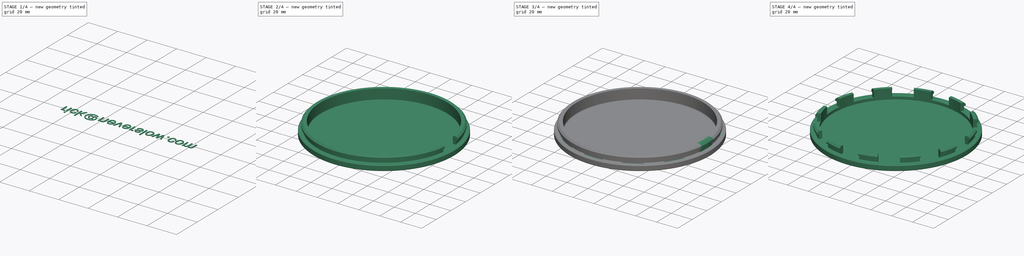
[diagram: build sequence overview — one tinted view per stage of 4, left to right]
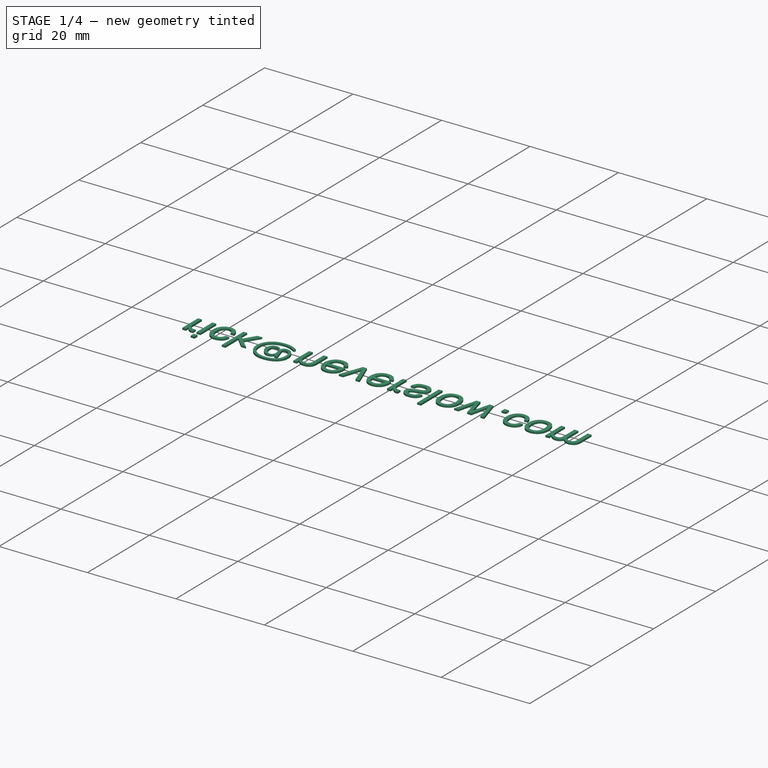
[diagram: stage 1 of 4 — iso view after this stage's code; geometry added in this stage tinted green]
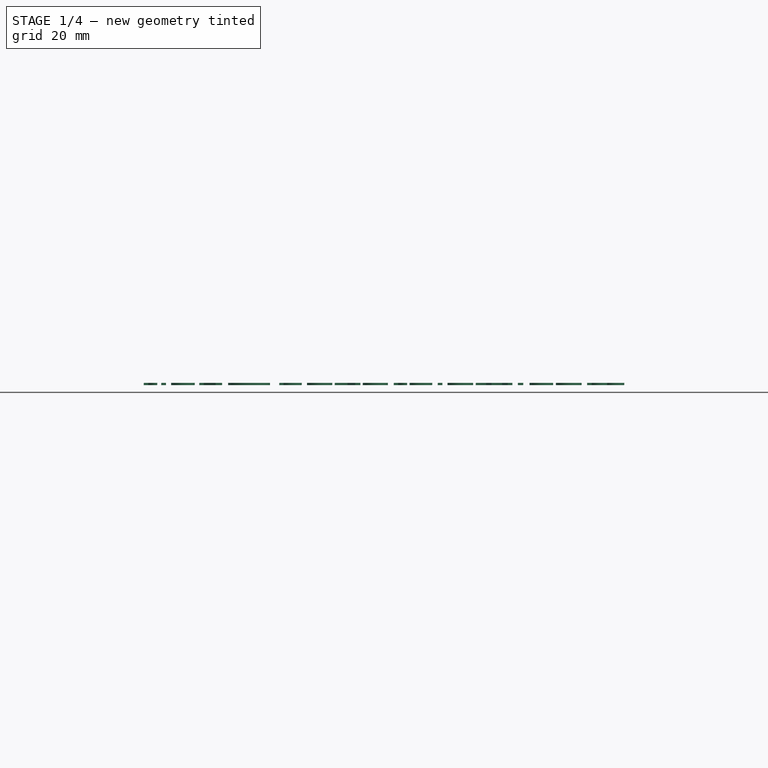
[diagram: stage 1 of 4 — front view after this stage's code; geometry added in this stage tinted green]
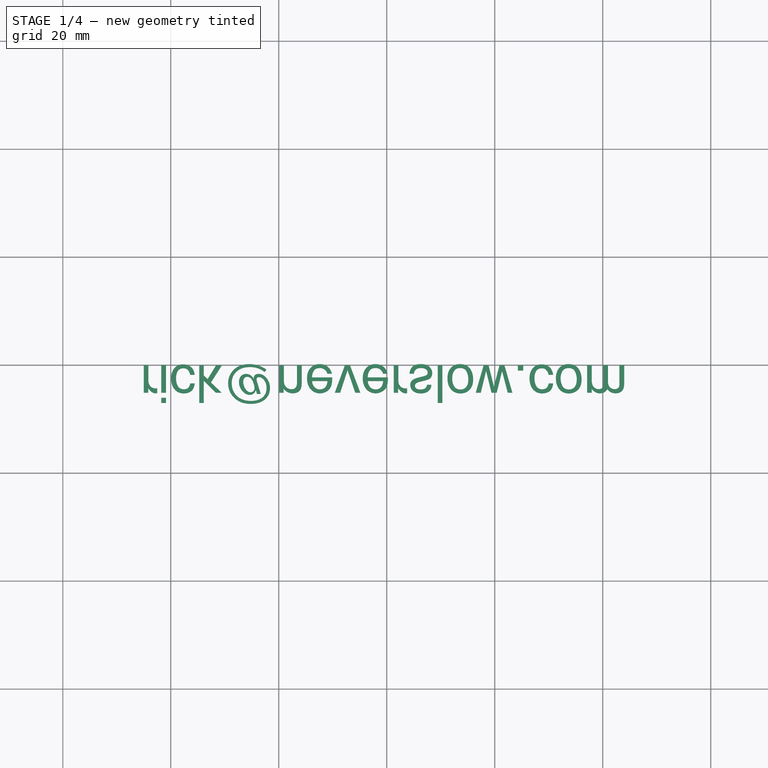
[diagram: stage 1 of 4 — top view after this stage's code; geometry added in this stage tinted green]
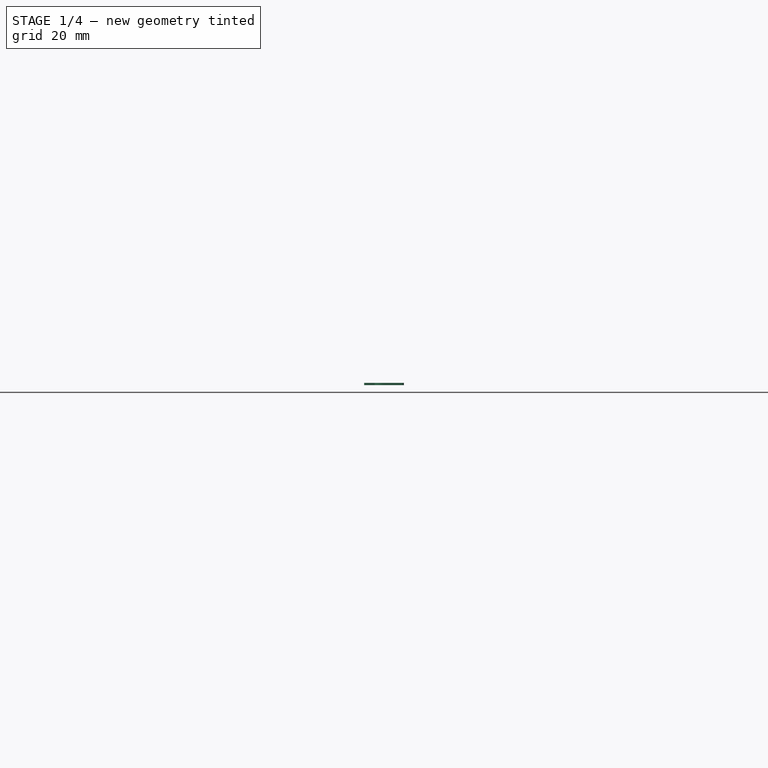
[diagram: stage 1 of 4 — right view after this stage's code; geometry added in this stage tinted green]
FCSTD DOCUMENT  (FreeCAD 1.1R38843 (Git))
Label: mb-wheel-caps
License: All rights reserved
LicenseURL: http://en.wikipedia.org/wiki/All_rights_reserved
objects: Sketcher::SketchObject×4, PartDesign::Revolution×2, PartDesign::Pocket×2, PartDesign::PolarPattern×2, PartDesign::Body×2, Part::Part2DObjectPython×2, Part::Extrusion×2, Part::Cut×1
note: 31 computed .brp shape members not serialized (recipe doc carries the construction recipe); baked Part::Feature solids carry a one-line shape summary decoded from their .brp

FEATURE [PartDesign::Body] Body001  label="cap"
  AllowCompound = false
  Group = -> [Sketch002,Revolution001,Sketch003,Pocket001,PolarPattern001]
  Origin = -> Origin001
  Tip = -> PolarPattern001
FEATURE [Part::Part2DObjectPython] ShapeString  # Draft 2D object (typed FeaturePython)
  FontFile = /System/Library/Fonts/Helvetica.ttc
  Fuse = false
  Justification = 6
  JustificationReference = 0
  KeepLeftMargin = false
  MakeFace = true
  ObliqueAngle = 0
  Placement = pos=(-45,0,0) rot=(1,0,0;3.14159rad)
  ScaleToSize = true
  Size = 7
  String = <email>
  Tracking = 0
FEATURE [Part::Extrusion] Extrude  label="cut extrude"
  Base = -> ShapeString
  Dir = (0,0,-1)
  DirMode = 2
  FaceMakerClass = Part::FaceMakerBullseye
  FaceMakerMode = 3
  LengthFwd = 0
  LengthRev = 0.4
  Solid = false
  Symmetric = false
FEATURE [Part::Part2DObjectPython] ShapeString001  # Draft 2D object (typed FeaturePython)
  FontFile = /System/Library/Fonts/Helvetica.ttc
  Fuse = false
  Justification = 6
  JustificationReference = 0
  KeepLeftMargin = false
  MakeFace = true
  ObliqueAngle = 0
  Placement = pos=(-45,0,0) rot=(1,0,0;3.14159rad)
  ScaleToSize = true
  Size = 7
  String = <email>
  Tracking = 0
FEATURE [Part::Extrusion] Extrude001  label="white extrude"
  Base = -> ShapeString001
  Dir = (0,0,-1)
  DirMode = 2
  FaceMakerClass = Part::FaceMakerBullseye
  FaceMakerMode = 3
  LengthFwd = 0
  LengthRev = 0.4
  Solid = false
  Symmetric = false
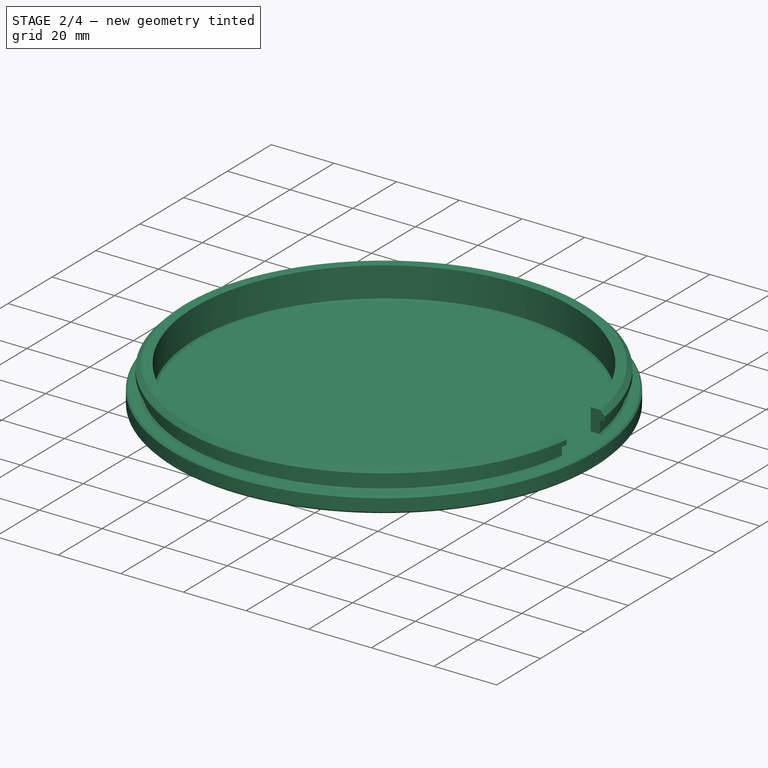
[diagram: stage 2 of 4 — iso view after this stage's code; geometry added in this stage tinted green]
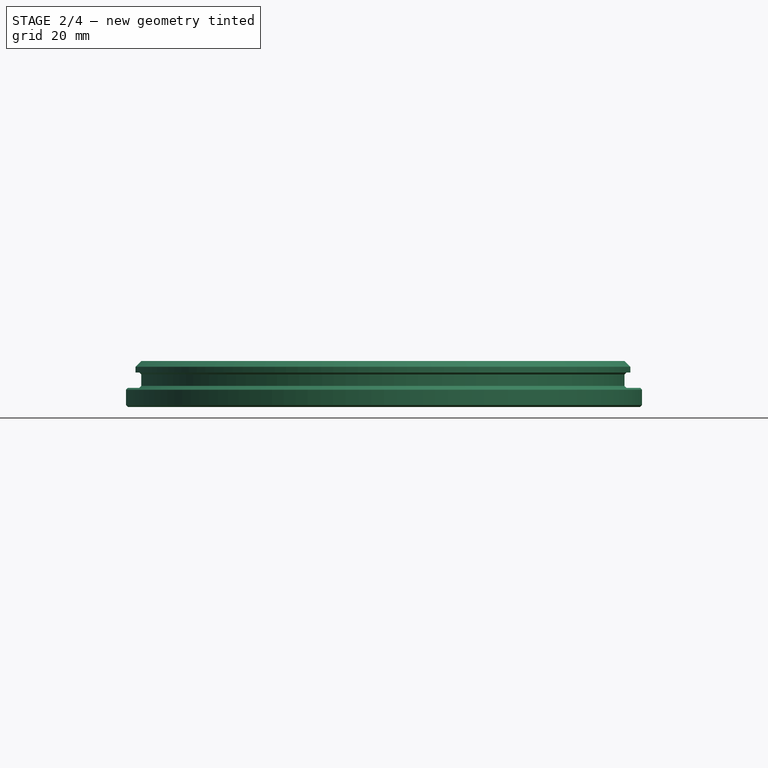
[diagram: stage 2 of 4 — front view after this stage's code; geometry added in this stage tinted green]
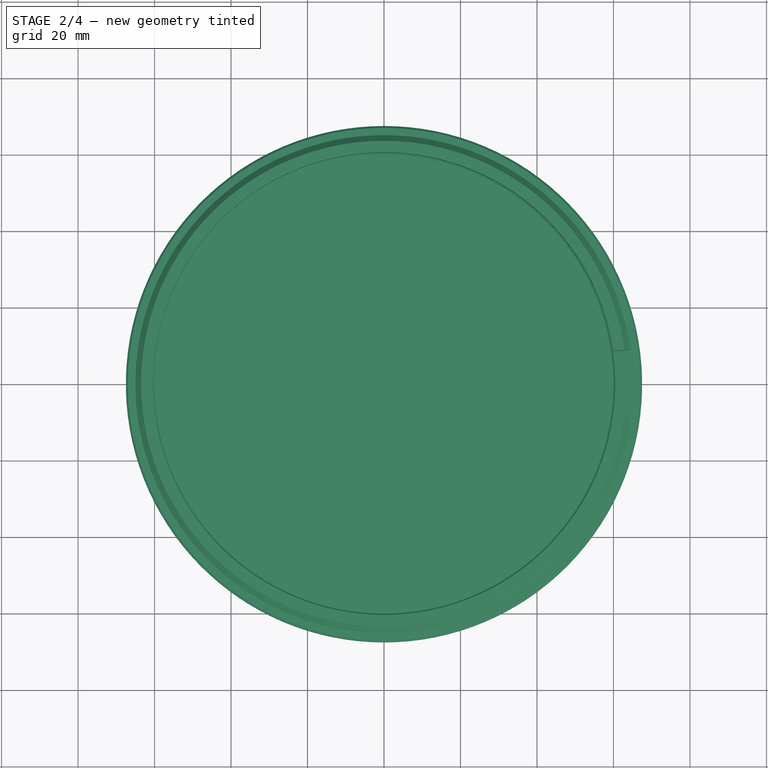
[diagram: stage 2 of 4 — top view after this stage's code; geometry added in this stage tinted green]
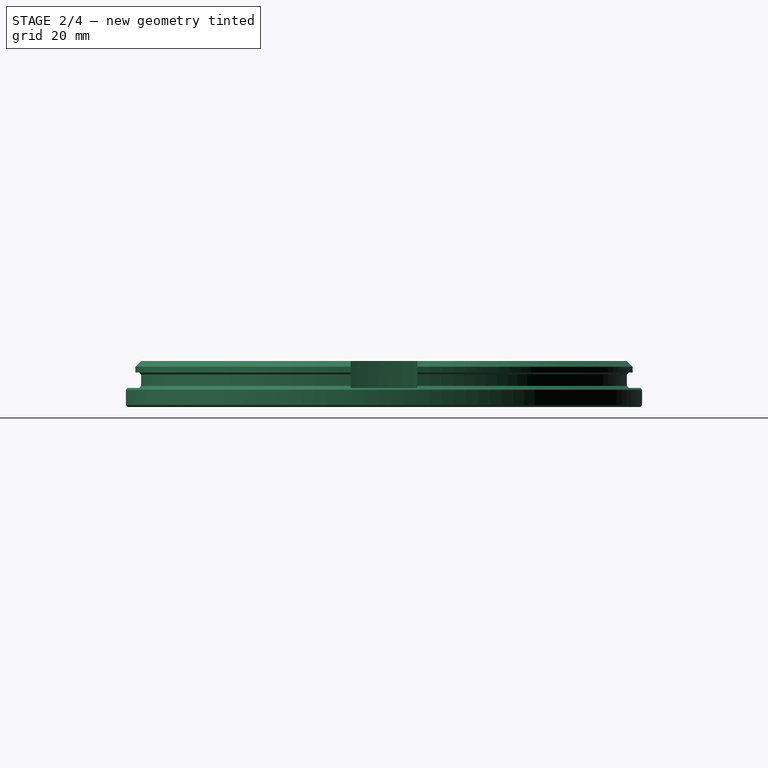
[diagram: stage 2 of 4 — right view after this stage's code; geometry added in this stage tinted green]
FEATURE [PartDesign::Body] Body  label="test"
  AllowCompound = false
  Group = -> [Sketch,Revolution,Sketch001,Pocket,PolarPattern]
  Origin = -> Origin
  Tip = -> PolarPattern
FEATURE [Sketcher::SketchObject] Sketch002
  ArcFitTolerance = 0
  AttachmentSupport = -> [YZ_Plane001]
  FullyConstrained = true
  MakeInternals = false
  MapMode = 5
  Placement = pos=(0,0,0) rot=(0.57735,0.57735,0.57735;2.0944rad)
  sketch-geometry (26):
    g0: LineSegment StartX=67 StartY=5 StartZ=0 EndX=64 EndY=5 EndZ=0
    g1: LineSegment StartX=63.5 StartY=5.5 StartZ=0 EndX=63.5 EndY=8.5 EndZ=0
    g2: LineSegment StartX=64 StartY=9 StartZ=0 EndX=65 EndY=9 EndZ=0
    g3: LineSegment StartX=65 StartY=9 StartZ=0 EndX=65 EndY=10.5 EndZ=0
    g4: LineSegment StartX=65 StartY=10.5 StartZ=0 EndX=63.5 EndY=12 EndZ=0
    g5: LineSegment StartX=63.5 StartY=12 StartZ=0 EndX=60.5 EndY=12 EndZ=0
    g6: LineSegment StartX=0 StartY=0 StartZ=0 EndX=67 EndY=0 EndZ=0
    g7: LineSegment StartX=67.5 StartY=0.5 StartZ=0 EndX=67.5 EndY=4.5 EndZ=0
    g8: LineSegment StartX=0 StartY=0 StartZ=0 EndX=0 EndY=2 EndZ=0
    g9: LineSegment StartX=0 StartY=2 StartZ=0 EndX=60 EndY=2 EndZ=0
    g10: LineSegment StartX=60.5 StartY=12 StartZ=0 EndX=60.5 EndY=2.5 EndZ=0
    g11: ArcOfCircle [constr] CenterX=67 CenterY=4.5 CenterZ=0 NormalX=0 NormalY=0 NormalZ=1 AngleXU=0 Radius=0.5 StartAngle=3e-16 EndAngle=1.5708
    g12: GeomPoint [constr] X=67.5 Y=5 Z=0
    g13: LineSegment StartX=67.5 StartY=4.5 StartZ=0 EndX=67 EndY=5 EndZ=0
    g14: ArcOfCircle [constr] CenterX=67 CenterY=0.5 CenterZ=0 NormalX=0 NormalY=0 NormalZ=1 AngleXU=0 Radius=0.5 StartAngle=4.71239 EndAngle=6.28319
    g15: GeomPoint [constr] X=67.5 Y=0 Z=0
    g16: LineSegment StartX=67 StartY=0 StartZ=0 EndX=67.5 EndY=0.5 EndZ=0
    g17: ArcOfCircle [constr] CenterX=60 CenterY=2.5 CenterZ=0 NormalX=0 NormalY=0 NormalZ=1 AngleXU=0 Radius=0.5 StartAngle=4.71239 EndAngle=6.28319
    g18: GeomPoint [constr] X=60.5 Y=2 Z=0
    g19: LineSegment StartX=60 StartY=2 StartZ=0 EndX=60.5 EndY=2.5 EndZ=0
    g20: ArcOfCircle [constr] CenterX=64 CenterY=5.5 CenterZ=0 NormalX=0 NormalY=0 NormalZ=1 AngleXU=0 Radius=0.5 StartAngle=3.14159 EndAngle=4.71239
    g21: GeomPoint [constr] X=63.5 Y=5 Z=0
    g22: LineSegment StartX=63.5 StartY=5.5 StartZ=0 EndX=64 EndY=5 EndZ=0
    g23: ArcOfCircle [constr] CenterX=64 CenterY=8.5 CenterZ=0 NormalX=0 NormalY=0 NormalZ=1 AngleXU=0 Radius=0.5 StartAngle=1.5708 EndAngle=3.14159
    g24: GeomPoint [constr] X=63.5 Y=9 Z=0
    g25: LineSegment StartX=64 StartY=9 StartZ=0 EndX=63.5 EndY=8.5 EndZ=0
  constraints (62):
    c: Horizontal(g0)
    c: Vertical(g1)
    c: Horizontal(g2)
    c: Coincident(g2,g3)
    c: Vertical(g3)
    c: Coincident(g3,g4)
    c: Coincident(g4,g5)
    c: Horizontal(g5)
    c: Horizontal(g6)
    c: Vertical(g7)
    c: DistanceY(g21,g24) = 4
    c: DistanceX(g24,g2) = 1.5
    c: DistanceY(g15,g12) = 5
    c: DistanceY(g2,g4) = 3
    c: DistanceX(g21,g12) = 4
    c: DistanceX(g4,g3) = 1.5
    c: DistanceY(g3,g4) = 1.5
    c: DistanceX(g-1,g21) = 63.5
    c: Coincident(g6,g-1)
    c: Coincident(g6,g8)
    c: PointOnObject(g8,g-2)
    c: Coincident(g8,g9)
    c: Horizontal(g9)
    c: Vertical(g5,g18)
    c: Coincident(g10,g5)
    c: DistanceY(g15,g18) = 2
    c: DistanceX(g5,g5) = 3
    c: PointOnObject(g12,g0)
    c: PointOnObject(g12,g7)
    c: Tangent(g0,g11) = -1.5708
    c: Tangent(g7,g11) = -1.5708
    c: Coincident(g13,g0)
    c: Coincident(g13,g7)
    c: PointOnObject(g15,g7)
    c: PointOnObject(g15,g6)
    c: Tangent(g7,g14) = -1.5708
    c: Tangent(g6,g14) = -1.5708
    c: Coincident(g16,g7)
    c: Coincident(g16,g6)
    c: Radius(g14) = 0.5
    c: Equal(g14,g11)
    c: PointOnObject(g18,g9)
    c: PointOnObject(g18,g10)
    c: Tangent(g9,g17) = -1.5708
    c: Tangent(g10,g17) = 1.5708
    c: Coincident(g19,g9)
    c: Coincident(g19,g10)
    c: Equal(g11,g17)
    c: PointOnObject(g21,g1)
    c: PointOnObject(g21,g0)
    c: Tangent(g1,g20) = 1.5708
    c: Tangent(g0,g20) = 1.5708
    c: Coincident(g22,g1)
    c: Coincident(g22,g0)
    c: PointOnObject(g24,g2)
    c: PointOnObject(g24,g1)
    c: Tangent(g2,g23) = 1.5708
    c: Tangent(g1,g23) = 1.5708
    c: Coincident(g25,g2)
    c: Coincident(g25,g1)
    c: Equal(g23,g11)
    c: Equal(g20,g11)
FEATURE [PartDesign::Revolution] Revolution001
  Angle = 360
  Angle2 = 60
  Axis = (0,0,1)
  Base = (0,0,0)
  Placement = pos=(0,0,0) rot=(1,1,1;2.0944rad)
  Profile = -> Sketch002
  ReferenceAxis = -> Sketch002 [V_Axis]
  Reversed = true
  Suppressed = false
  Type = 0
FEATURE [Sketcher::SketchObject] Sketch003
  ArcFitTolerance = 0
  AttachmentOffset = pos=(0,0,5) rot=(0,0,1;0rad)
  AttachmentSupport = -> [XY_Plane]
  FullyConstrained = false
  MakeInternals = false
  MapMode = 5
  Placement = pos=(0,0,5) rot=(0,0,1;0rad)
  sketch-geometry (4):
    g0: LineSegment StartX=53.8693 StartY=8.73013 StartZ=0 EndX=53.8693 EndY=-8.73013 EndZ=0
    g1: LineSegment StartX=53.8693 StartY=-8.73013 StartZ=0 EndX=73.3262 EndY=-8.73013 EndZ=0
    g2: LineSegment StartX=73.3262 StartY=-8.73013 StartZ=0 EndX=73.3262 EndY=8.73013 EndZ=0
    g3: LineSegment StartX=73.3262 StartY=8.73013 StartZ=0 EndX=53.8693 EndY=8.73013 EndZ=0
  constraints (8):
    c: Coincident(g0,g1)
    c: Coincident(g1,g2)
    c: Coincident(g2,g3)
    c: Coincident(g3,g0)
    c: Vertical(g0)
    c: Horizontal(g1)
    c: Horizontal(g3)
    c: Symmetric(g2,g1,g-1)
FEATURE [PartDesign::Pocket] Pocket001
  BaseFeature = -> Revolution001
  Direction = (0,0,-1)
  Length = 5
  Length2 = 5
  Placement = pos=(0,0,0) rot=(1,1,1;2.0944rad)
  Profile = -> Sketch003
  ReferenceAxis = -> Sketch003 [N_Axis]
  Reversed = true
  Suppressed = false
  Type = 1
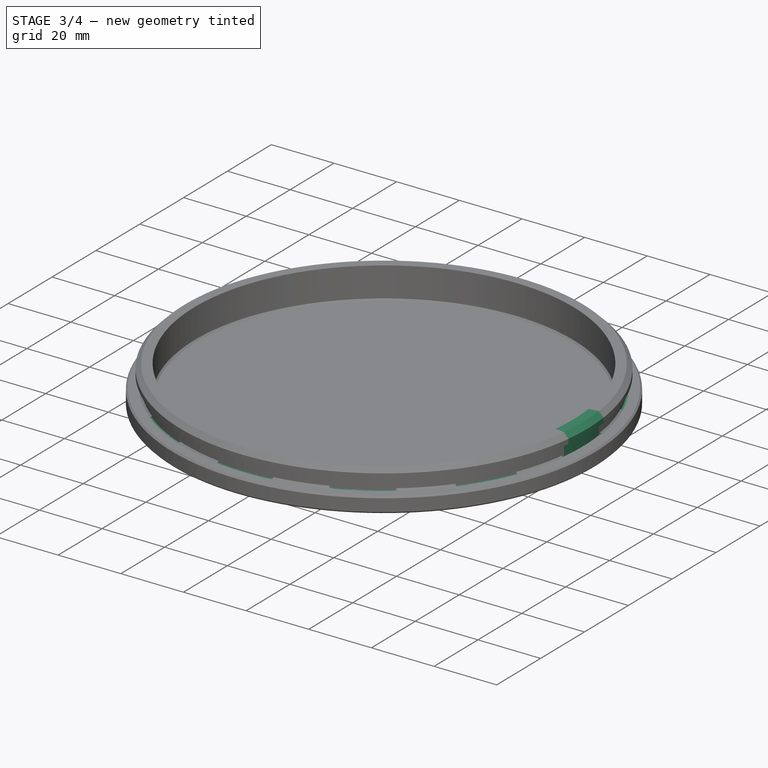
[diagram: stage 3 of 4 — iso view after this stage's code; geometry added in this stage tinted green]
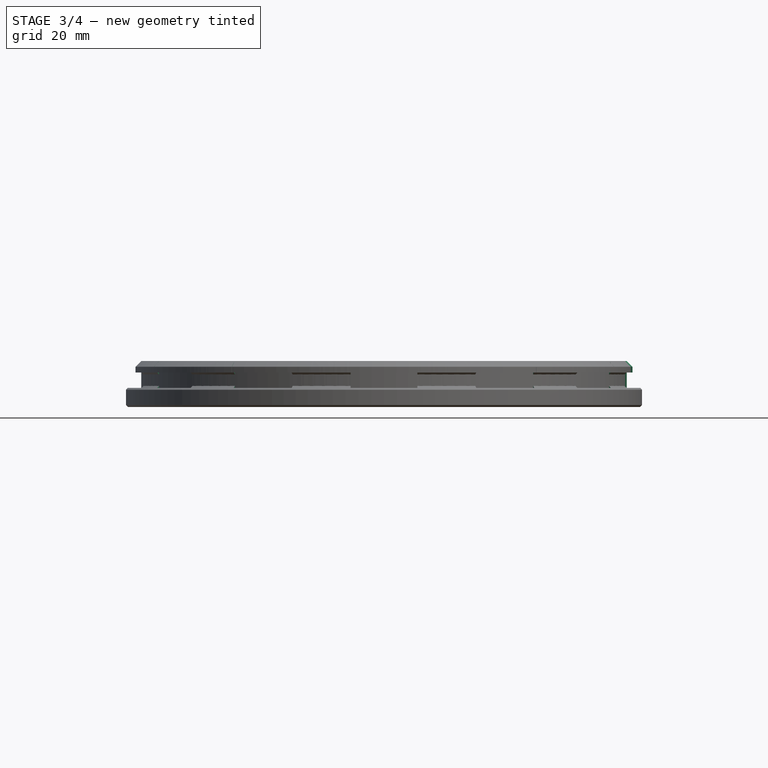
[diagram: stage 3 of 4 — front view after this stage's code; geometry added in this stage tinted green]
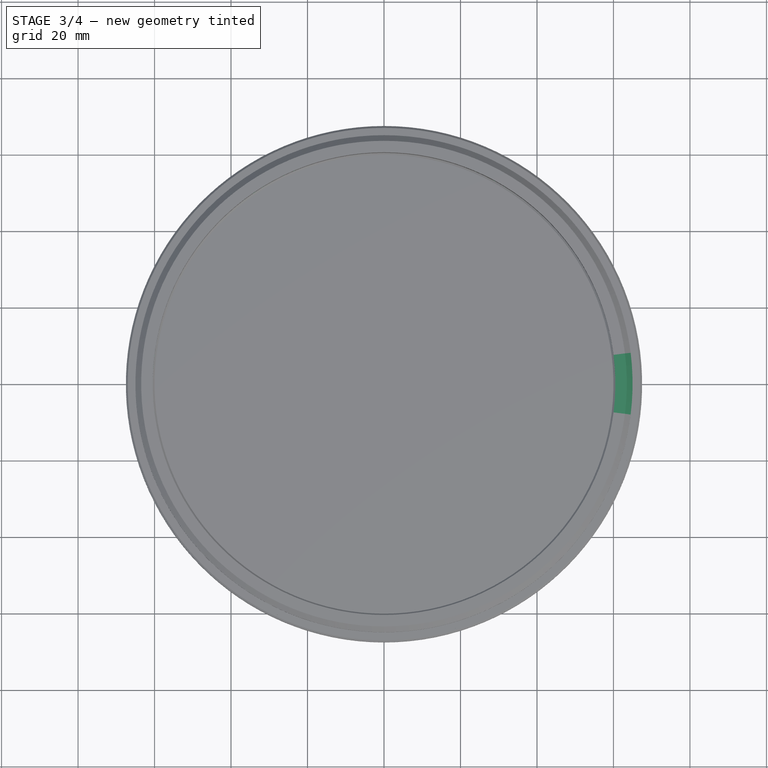
[diagram: stage 3 of 4 — top view after this stage's code; geometry added in this stage tinted green]
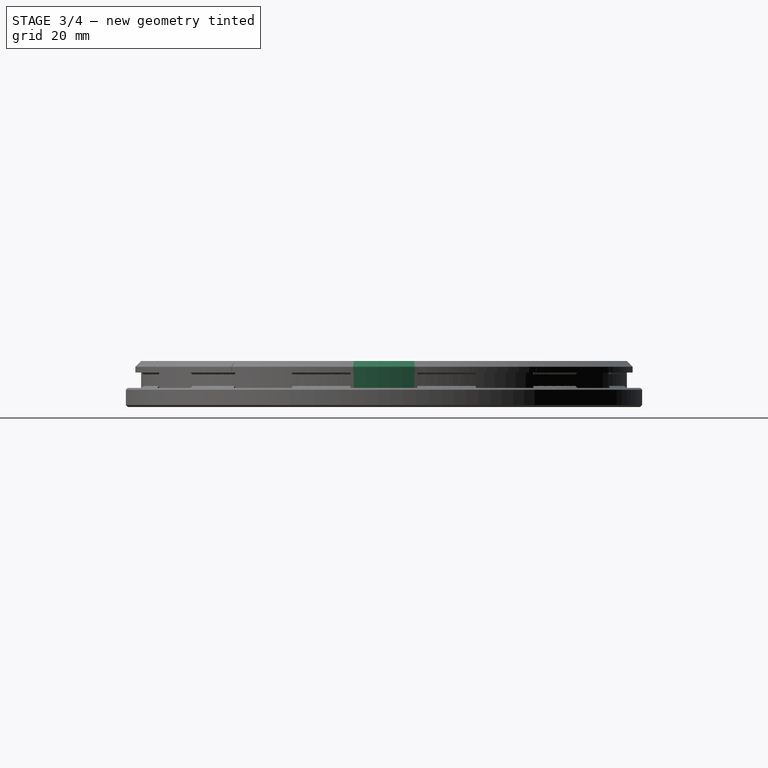
[diagram: stage 3 of 4 — right view after this stage's code; geometry added in this stage tinted green]
FEATURE [Sketcher::SketchObject] Sketch
  ArcFitTolerance = 0
  AttachmentSupport = -> [YZ_Plane]
  FullyConstrained = true
  MakeInternals = false
  MapMode = 5
  Placement = pos=(0,0,0) rot=(0.57735,0.57735,0.57735;2.0944rad)
  sketch-geometry (9):
    g0: LineSegment StartX=66.5 StartY=5 StartZ=0 EndX=63.5 EndY=5 EndZ=0
    g1: LineSegment StartX=63.5 StartY=5 StartZ=0 EndX=63.5 EndY=9 EndZ=0
    g2: LineSegment StartX=63.5 StartY=9 StartZ=0 EndX=65 EndY=9 EndZ=0
    g3: LineSegment StartX=65 StartY=9 StartZ=0 EndX=65 EndY=10.5 EndZ=0
    g4: LineSegment StartX=65 StartY=10.5 StartZ=0 EndX=63.5 EndY=12 EndZ=0
    g5: LineSegment StartX=63.5 StartY=12 StartZ=0 EndX=60.5 EndY=12 EndZ=0
    g6: LineSegment StartX=60.5 StartY=12 StartZ=0 EndX=60.5 EndY=0 EndZ=0
    g7: LineSegment StartX=60.5 StartY=0 StartZ=0 EndX=66.5 EndY=0 EndZ=0
    g8: LineSegment StartX=66.5 StartY=0 StartZ=0 EndX=66.5 EndY=5 EndZ=0
  constraints (27):
    c: Horizontal(g0)
    c: Coincident(g0,g1)
    c: Vertical(g1)
    c: Coincident(g1,g2)
    c: Horizontal(g2)
    c: Coincident(g2,g3)
    c: Vertical(g3)
    c: Coincident(g3,g4)
    c: Coincident(g4,g5)
    c: Horizontal(g5)
    c: Coincident(g5,g6)
    c: Vertical(g6)
    c: Coincident(g6,g7)
    c: Horizontal(g7)
    c: Coincident(g7,g8)
    c: Coincident(g8,g0)
    c: Vertical(g8)
    c: DistanceY(g1,g1) = 4
    c: DistanceX(g2,g2) = 1.5
    c: DistanceX(g6,g0) = 3
    c: DistanceY(g8,g8) = 5
    c: DistanceY(g2,g4) = 3
    c: DistanceX(g0,g0) = 3
    c: DistanceX(g4,g3) = 1.5
    c: DistanceY(g3,g4) = 1.5
    c: DistanceX(g-1,g0) = 63.5
    c: PointOnObject(g7,g-1)
FEATURE [PartDesign::Revolution] Revolution
  Angle = 360
  Angle2 = 60
  Axis = (0,0,1)
  Base = (0,0,0)
  Placement = pos=(0,0,0) rot=(1,1,1;2.0944rad)
  Profile = -> Sketch
  ReferenceAxis = -> Sketch [V_Axis]
  Reversed = true
  Suppressed = false
  Type = 0
FEATURE [PartDesign::PolarPattern] PolarPattern001
  Angle = 360
  Axis = -> Sketch003 [N_Axis]
  BaseFeature = -> Pocket001
  Mode = 0
  Occurrences = 12
  Offset = 120
  Originals = -> [Pocket001]
  Placement = pos=(0,0,0) rot=(1,1,1;2.0944rad)
  Suppressed = false
  TransformMode = 0
FEATURE [Part::Cut] Cut
  Base = -> Body001
  Tool = -> Extrude
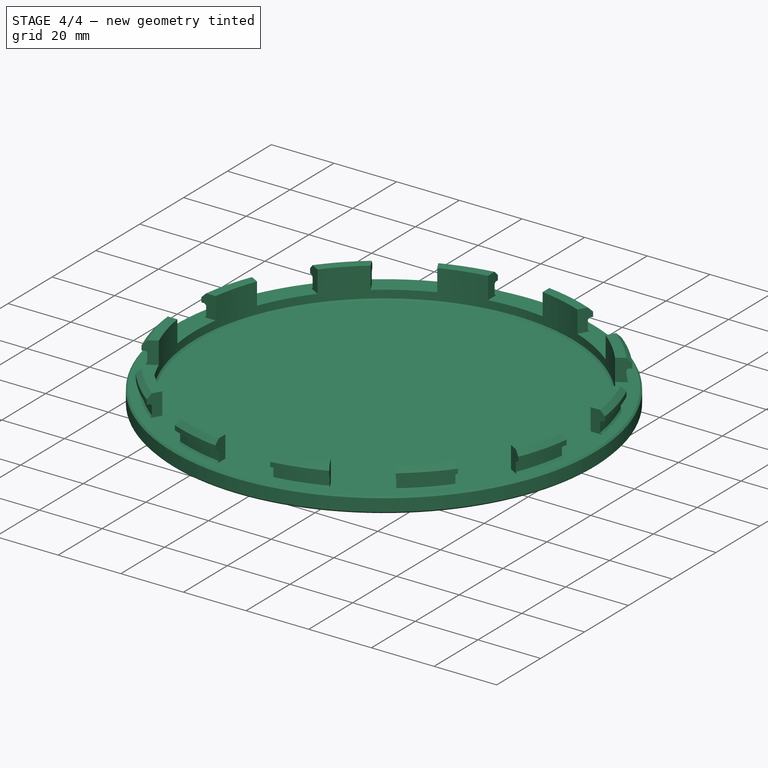
[diagram: stage 4 of 4 — iso view after this stage's code; geometry added in this stage tinted green]
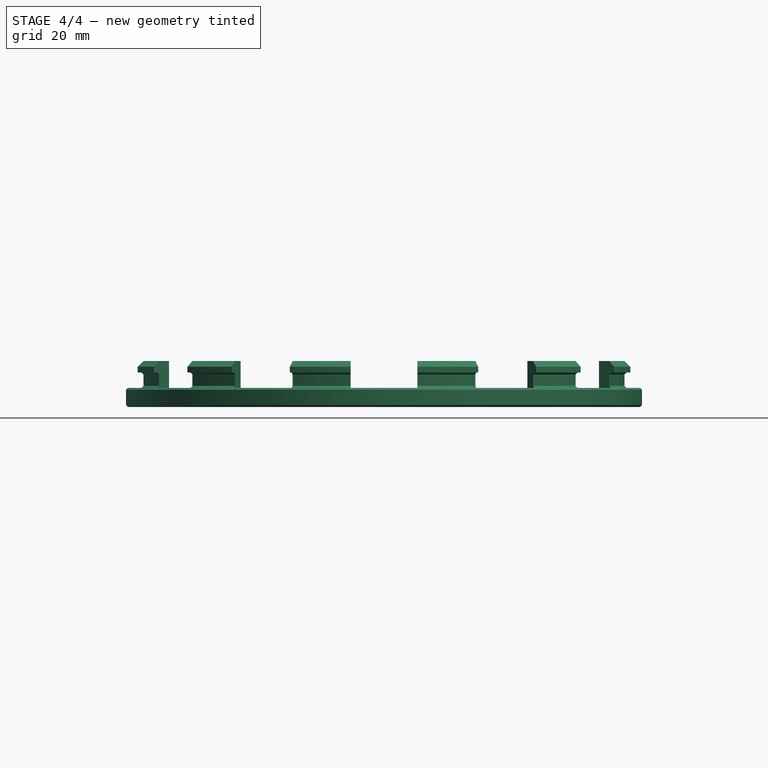
[diagram: stage 4 of 4 — front view after this stage's code; geometry added in this stage tinted green]
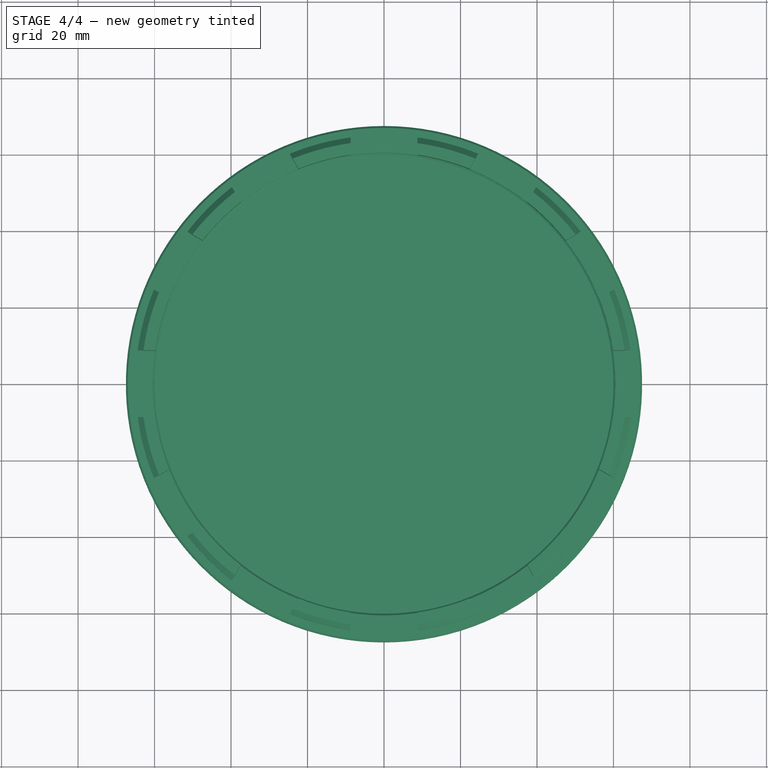
[diagram: stage 4 of 4 — top view after this stage's code; geometry added in this stage tinted green]
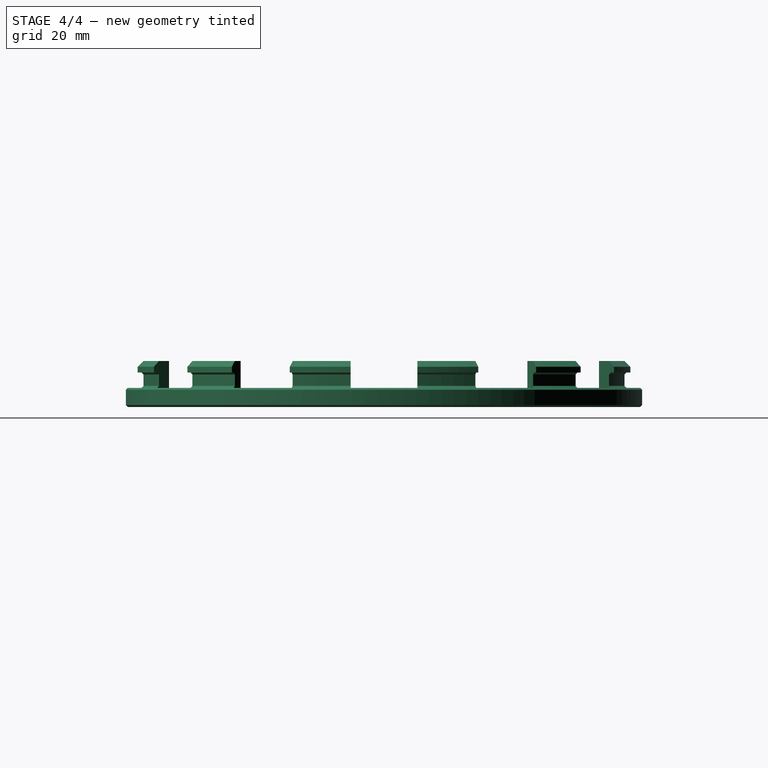
[diagram: stage 4 of 4 — right view after this stage's code; geometry added in this stage tinted green]
FEATURE [Sketcher::SketchObject] Sketch001
  ArcFitTolerance = 0
  AttachmentSupport = -> [Revolution]
  FullyConstrained = false
  MakeInternals = false
  MapMode = 5
  Placement = pos=(-1.7e-15,6e-16,5) rot=(0,0,-1;1.5708rad)
  sketch-geometry (4):
    g0: LineSegment StartX=53.8693 StartY=8.73013 StartZ=0 EndX=53.8693 EndY=-8.73013 EndZ=0
    g1: LineSegment StartX=53.8693 StartY=-8.73013 StartZ=0 EndX=73.3262 EndY=-8.73013 EndZ=0
    g2: LineSegment StartX=73.3262 StartY=-8.73013 StartZ=0 EndX=73.3262 EndY=8.73013 EndZ=0
    g3: LineSegment StartX=73.3262 StartY=8.73013 StartZ=0 EndX=53.8693 EndY=8.73013 EndZ=0
  constraints (8):
    c: Coincident(g0,g1)
    c: Coincident(g1,g2)
    c: Coincident(g2,g3)
    c: Coincident(g3,g0)
    c: Vertical(g0)
    c: Horizontal(g1)
    c: Horizontal(g3)
    c: Symmetric(g2,g1,g-1)
FEATURE [PartDesign::Pocket] Pocket
  BaseFeature = -> Revolution
  Direction = (0,0,-1)
  Length = 5
  Length2 = 5
  Placement = pos=(0,0,0) rot=(1,1,1;2.0944rad)
  Profile = -> Sketch001
  ReferenceAxis = -> Sketch001 [N_Axis]
  Reversed = true
  Suppressed = false
  Type = 1
FEATURE [PartDesign::PolarPattern] PolarPattern
  Angle = 360
  Axis = -> Sketch001 [N_Axis]
  BaseFeature = -> Pocket
  Mode = 0
  Occurrences = 12
  Offset = 120
  Originals = -> [Pocket]
  Placement = pos=(0,0,0) rot=(1,1,1;2.0944rad)
  Suppressed = false
  TransformMode = 0
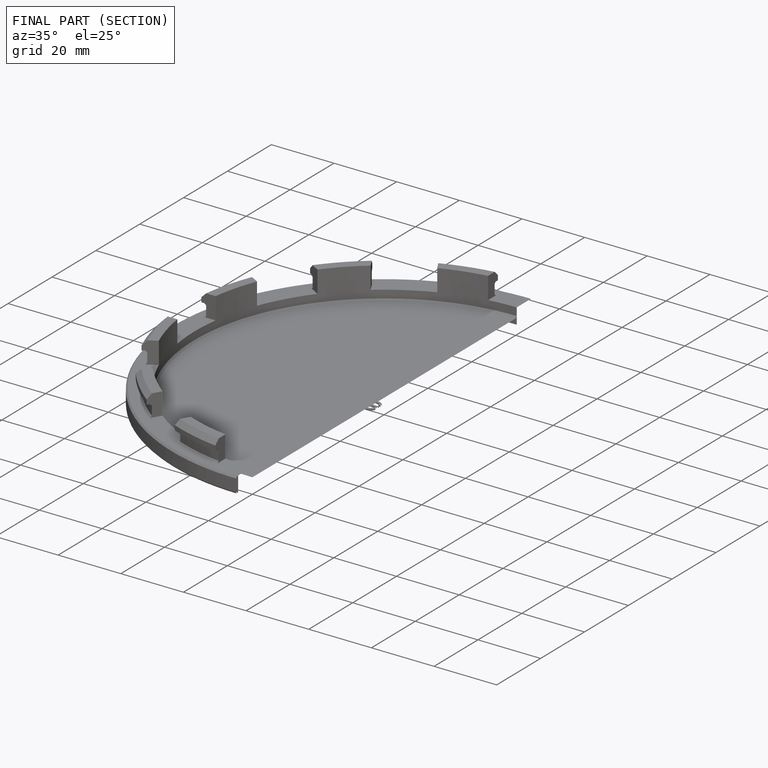
[diagram: finished part — half-section view (interior)]
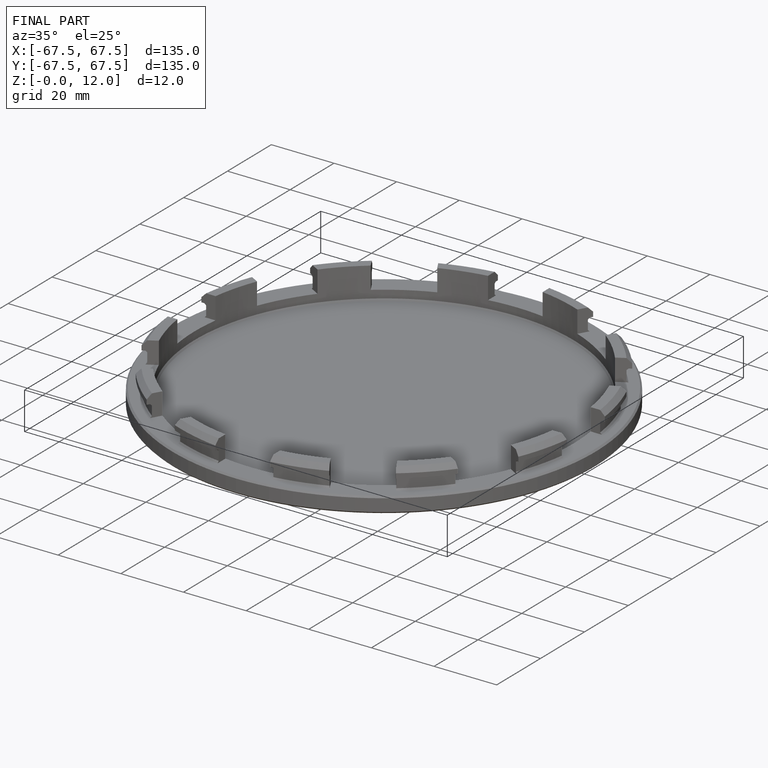
[diagram: finished part — iso view with bounding-box wireframe]
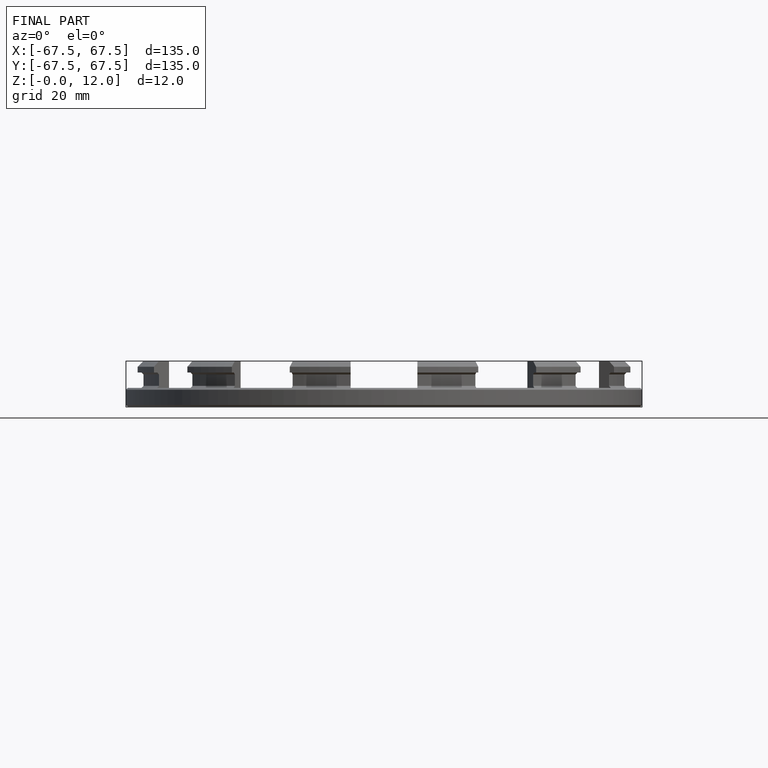
[diagram: finished part — front view with bounding-box wireframe]
